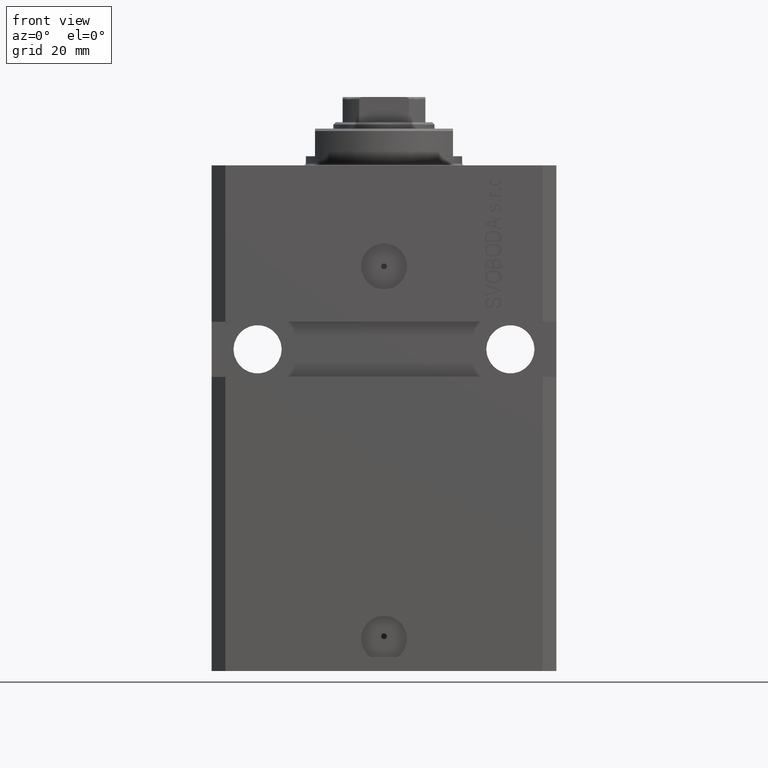
[diagram: clean part render]
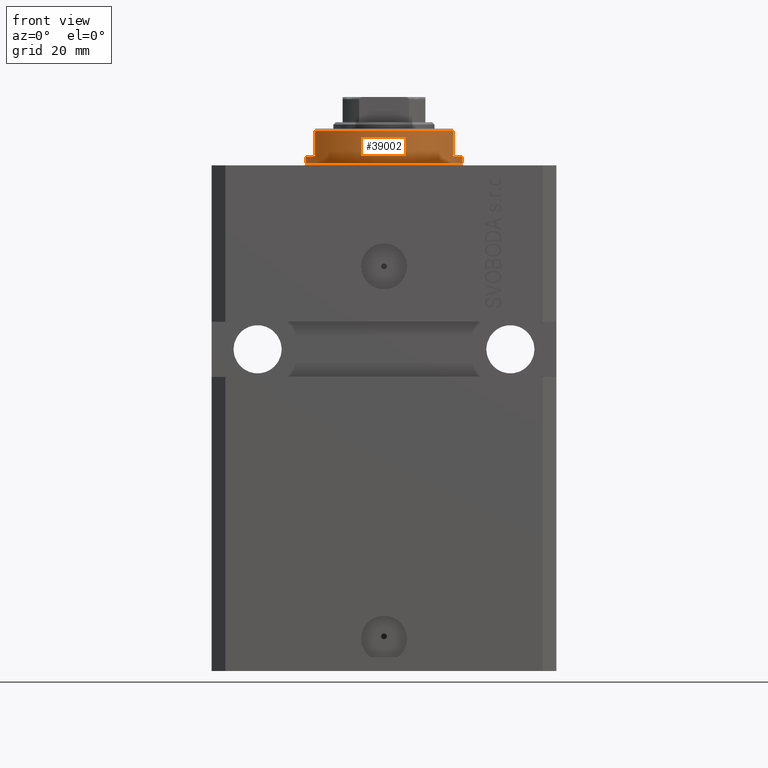
[diagram: same view with one face highlighted and labeled with its STEP entity id]
A machine part, front view. The second image highlights one B-rep face of the part: STEP entity #39002.
In plain terms, the highlighted cylindrical surface (partial cylindrical patch) has radius 17 mm, axis along (0, 0, -1).
Its self-contained STEP definition (entity closure, byte-faithful):
#1157 = VERTEX_POINT ( 'NONE', #27585 ) ;
#1222 = EDGE_CURVE ( 'NONE', #33350, #18164, #35079, .T. ) ;
#1548 = DIRECTION ( 'NONE',  ( 0.000000000000000000, 0.000000000000000000, -1.000000000000000000 ) ) ;
#1684 = VERTEX_POINT ( 'NONE', #8253 ) ;
#1858 = LINE ( 'NONE', #19643, #2354 ) ;
#2354 = VECTOR ( 'NONE', #5877, 1000.000000000000000 ) ;
#2638 = VECTOR ( 'NONE', #1548, 1000.000000000000000 ) ;
#3552 = AXIS2_PLACEMENT_3D ( 'NONE', #10714, #14029, #43170 ) ;
#3580 = AXIS2_PLACEMENT_3D ( 'NONE', #27232, #34318, #41685 ) ;
#5748 = CARTESIAN_POINT ( 'NONE',  ( 17.00000000000000000, 0.000000000000000000, -8.000000000000000000 ) ) ;
#5877 = DIRECTION ( 'NONE',  ( 0.000000000000000000, 0.000000000000000000, -1.000000000000000000 ) ) ;
#6140 = EDGE_CURVE ( 'NONE', #46037, #23620, #40449, .T. ) ;
#6222 = DIRECTION ( 'NONE',  ( -0.000000000000000000, -0.000000000000000000, 1.000000000000000000 ) ) ;
#6838 = VECTOR ( 'NONE', #6222, 1000.000000000000000 ) ;
#7186 = DIRECTION ( 'NONE',  ( -1.000000000000000000, 0.000000000000000000, 0.000000000000000000 ) ) ;
#8253 = CARTESIAN_POINT ( 'NONE',  ( 15.00000000000000000, -8.000000000000001776, -7.500000000000013323 ) ) ;
#8263 = AXIS2_PLACEMENT_3D ( 'NONE', #20314, #10108, #17467 ) ;
#8502 = EDGE_LOOP ( 'NONE', ( #22871, #30057, #30112, #29660, #35411, #20621, #44190, #29525 ) ) ;
#10108 = DIRECTION ( 'NONE',  ( -0.000000000000000000, -0.000000000000000000, 1.000000000000000000 ) ) ;
#10128 = AXIS2_PLACEMENT_3D ( 'NONE', #36313, #18797, #7186 ) ;
#10714 = CARTESIAN_POINT ( 'NONE',  ( 0.000000000000000000, 0.000000000000000000, -7.500000000000013323 ) ) ;
#11021 = EDGE_CURVE ( 'NONE', #27990, #1684, #25491, .T. ) ;
#11247 = CARTESIAN_POINT ( 'NONE',  ( -17.00000000000000000, 2.081899558550500280E-15, -0.5000000000000004441 ) ) ;
#12218 = CARTESIAN_POINT ( 'NONE',  ( -15.00000000000000000, -8.000000000000001776, -8.000000000000000000 ) ) ;
#12915 = EDGE_CURVE ( 'NONE', #21131, #1157, #24020, .T. ) ;
#13113 = LINE ( 'NONE', #5748, #6838 ) ;
#14029 = DIRECTION ( 'NONE',  ( 0.000000000000000000, 0.000000000000000000, 1.000000000000000000 ) ) ;
#14925 = CARTESIAN_POINT ( 'NONE',  ( -14.99999999999999645, -8.000000000000003553, -2.000000000000000000 ) ) ;
#16728 = DIRECTION ( 'NONE',  ( -0.000000000000000000, -0.000000000000000000, 1.000000000000000000 ) ) ;
#17192 = CARTESIAN_POINT ( 'NONE',  ( -17.00000000000000000, 2.081899558550500280E-15, -8.000000000000000000 ) ) ;
#17467 = DIRECTION ( 'NONE',  ( 1.000000000000000000, 0.000000000000000000, 0.000000000000000000 ) ) ;
#18164 = VERTEX_POINT ( 'NONE', #18228 ) ;
#18228 = CARTESIAN_POINT ( 'NONE',  ( 14.99999999999999645, -8.000000000000003553, -2.000000000000000000 ) ) ;
#18355 = EDGE_CURVE ( 'NONE', #1157, #23620, #39427, .T. ) ;
#18797 = DIRECTION ( 'NONE',  ( 0.000000000000000000, 0.000000000000000000, -1.000000000000000000 ) ) ;
#19643 = CARTESIAN_POINT ( 'NONE',  ( 15.00000000000000000, -8.000000000000001776, -8.000000000000000000 ) ) ;
#20314 = CARTESIAN_POINT ( 'NONE',  ( 0.000000000000000000, 0.000000000000000000, -8.000000000000000000 ) ) ;
#20621 = ORIENTED_EDGE ( 'NONE', *, *, #1222, .F. ) ;
#21131 = VERTEX_POINT ( 'NONE', #14925 ) ;
#21224 = DIRECTION ( 'NONE',  ( -0.000000000000000000, -0.000000000000000000, -1.000000000000000000 ) ) ;
#22871 = ORIENTED_EDGE ( 'NONE', *, *, #18355, .F. ) ;
#23620 = VERTEX_POINT ( 'NONE', #11247 ) ;
#23818 = AXIS2_PLACEMENT_3D ( 'NONE', #24532, #21224, #28310 ) ;
#24020 = CIRCLE ( 'NONE', #3580, 17.00000000000000000 ) ;
#24532 = CARTESIAN_POINT ( 'NONE',  ( 0.000000000000000000, 0.000000000000000000, -0.5000000000000004441 ) ) ;
#25233 = EDGE_CURVE ( 'NONE', #21131, #27990, #33744, .T. ) ;
#25491 = CIRCLE ( 'NONE', #3552, 17.00000000000000000 ) ;
#27232 = CARTESIAN_POINT ( 'NONE',  ( 0.000000000000000000, 0.000000000000000000, -2.000000000000000000 ) ) ;
#27585 = CARTESIAN_POINT ( 'NONE',  ( -17.00000000000000000, 2.081899558550500280E-15, -2.000000000000000000 ) ) ;
#27898 = VECTOR ( 'NONE', #16728, 1000.000000000000000 ) ;
#27990 = VERTEX_POINT ( 'NONE', #44557 ) ;
#28310 = DIRECTION ( 'NONE',  ( 1.000000000000000000, 0.000000000000000000, 0.000000000000000000 ) ) ;
#29525 = ORIENTED_EDGE ( 'NONE', *, *, #6140, .T. ) ;
#29660 = ORIENTED_EDGE ( 'NONE', *, *, #11021, .T. ) ;
#30057 = ORIENTED_EDGE ( 'NONE', *, *, #12915, .F. ) ;
#30112 = ORIENTED_EDGE ( 'NONE', *, *, #25233, .T. ) ;
#31120 = CARTESIAN_POINT ( 'NONE',  ( 17.00000000000000000, 0.000000000000000000, -0.5000000000000004441 ) ) ;
#33350 = VERTEX_POINT ( 'NONE', #34079 ) ;
#33744 = LINE ( 'NONE', #12218, #2638 ) ;
#34079 = CARTESIAN_POINT ( 'NONE',  ( 17.00000000000000000, 0.000000000000000000, -2.000000000000000000 ) ) ;
#34318 = DIRECTION ( 'NONE',  ( 0.000000000000000000, 0.000000000000000000, -1.000000000000000000 ) ) ;
#35079 = CIRCLE ( 'NONE', #10128, 17.00000000000000000 ) ;
#35411 = ORIENTED_EDGE ( 'NONE', *, *, #43733, .F. ) ;
#36313 = CARTESIAN_POINT ( 'NONE',  ( 0.000000000000000000, 0.000000000000000000, -2.000000000000000000 ) ) ;
#39002 = ADVANCED_FACE ( 'NONE', ( #46571 ), #42093, .T. ) ;
#39427 = LINE ( 'NONE', #17192, #27898 ) ;
#40449 = CIRCLE ( 'NONE', #23818, 17.00000000000000000 ) ;
#41685 = DIRECTION ( 'NONE',  ( -1.000000000000000000, 0.000000000000000000, 0.000000000000000000 ) ) ;
#42093 = CYLINDRICAL_SURFACE ( 'NONE', #8263, 17.00000000000000000 ) ;
#43133 = EDGE_CURVE ( 'NONE', #33350, #46037, #13113, .T. ) ;
#43170 = DIRECTION ( 'NONE',  ( -1.000000000000000000, 0.000000000000000000, 0.000000000000000000 ) ) ;
#43733 = EDGE_CURVE ( 'NONE', #18164, #1684, #1858, .T. ) ;
#44190 = ORIENTED_EDGE ( 'NONE', *, *, #43133, .T. ) ;
#44557 = CARTESIAN_POINT ( 'NONE',  ( -15.00000000000000000, -8.000000000000001776, -7.500000000000014211 ) ) ;
#46037 = VERTEX_POINT ( 'NONE', #31120 ) ;
#46571 = FACE_OUTER_BOUND ( 'NONE', #8502, .T. ) ;